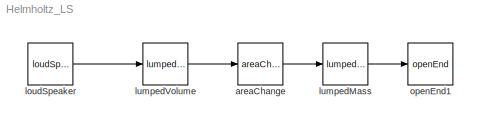
MODEL Helmholtz_LS
KIND model
BLOCK [Reference] areaChange  REF=Network_library/areaChange
  AttributesFormatString = %<aj> m^2
  D = 0
  Ports = [1, 1]
  SID = 419
  SourceBlock = Network_library/areaChange
  aj = pi/4*.05^2
  element = areaChange
BLOCK [Reference] loudSpeaker  REF=Network_library/loudSpeaker
  Amp = 1
  AttributesFormatString = %<Amp> m/s
  D = 0
  Mach = 0.
  Ports = [0, 1]
  SID = 420
  SourceBlock = Network_library/loudSpeaker
  a = 1
  c = 340
  element = loudSpeaker
  loc = Upstream
  rho = 1.2
BLOCK [Reference] lumpedMass  REF=Network_library/lumpedMass
  AttributesFormatString = %<Leq> m
  Flag = Equivalent length
  Leq = 1e-2
  Ports = [1, 1]
  SID = 421
  SourceBlock = Network_library/lumpedMass
  Veq = 1
  element = lumpedMass
  meq = 1e-3
BLOCK [Reference] lumpedVolume  REF=Network_library/lumpedVolume1
  AttributesFormatString = %<Leq> m
  Flag = Equivalent length
  Leq = .5
  Ports = [1, 1]
  SID = 422
  SourceBlock = Network_library/lumpedVolume1
  Veq = 1
  element = lumpedVolume
BLOCK [Reference] openEnd1  REF=Network_library/openEnd
  D = 1
  Mach = 0.1
  Ports = [1]
  SID = 423
  SourceBlock = Network_library/openEnd
  a = 1
  c = 100
  element = openEnd
  loc = Downstream
  rho = 1.2
LINE areaChange:1 -> lumpedMass:1
LINE loudSpeaker:1 -> lumpedVolume:1
LINE lumpedMass:1 -> openEnd1:1
LINE lumpedVolume:1 -> areaChange:1
